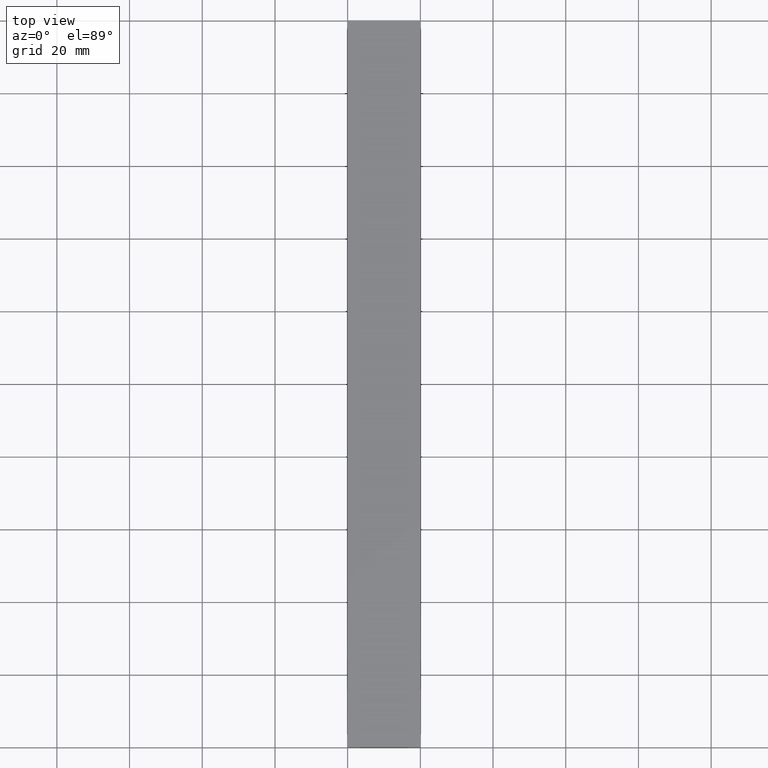
[diagram: clean part render]
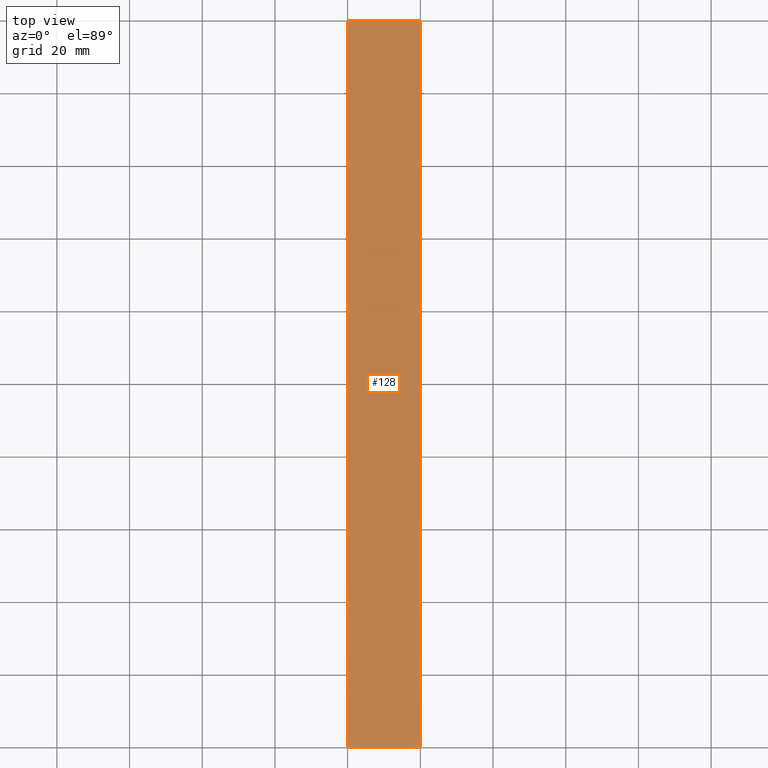
[diagram: same view with one face highlighted and labeled with its STEP entity id]
A machine part, top view. The second image highlights one B-rep face of the part: STEP entity #128.
In plain terms, the highlighted planar face has unit normal (0, 0, 1).
Its self-contained STEP definition (entity closure, byte-faithful):
#6 = LINE ( 'NONE', #89, #43 ) ;
#13 = CARTESIAN_POINT ( 'NONE',  ( 0.0000000000000000000, 0.0000000000000000000, 10.00000000000000000 ) ) ;
#16 = VECTOR ( 'NONE', #234, 1000.000000000000000 ) ;
#24 = CARTESIAN_POINT ( 'NONE',  ( 0.0000000000000000000, 1000.000000000000000, 10.00000000000000000 ) ) ;
#33 = VECTOR ( 'NONE', #41, 1000.000000000000000 ) ;
#37 = ORIENTED_EDGE ( 'NONE', *, *, #184, .T. ) ;
#41 = DIRECTION ( 'NONE',  ( 0.0000000000000000000, -1.000000000000000000, 0.0000000000000000000 ) ) ;
#43 = VECTOR ( 'NONE', #212, 1000.000000000000000 ) ;
#49 = VECTOR ( 'NONE', #92, 1000.000000000000000 ) ;
#50 = DIRECTION ( 'NONE',  ( 0.0000000000000000000, 0.0000000000000000000, 1.000000000000000000 ) ) ;
#52 = ORIENTED_EDGE ( 'NONE', *, *, #121, .F. ) ;
#61 = ORIENTED_EDGE ( 'NONE', *, *, #113, .T. ) ;
#66 = PLANE ( 'NONE',  #157 ) ;
#76 = CARTESIAN_POINT ( 'NONE',  ( 20.00000000000000000, 1000.000000000000000, 10.00000000000000000 ) ) ;
#89 = CARTESIAN_POINT ( 'NONE',  ( 0.0000000000000000000, 200.0000000000000000, 10.00000000000000000 ) ) ;
#90 = CARTESIAN_POINT ( 'NONE',  ( 20.00000000000000000, 0.0000000000000000000, 10.00000000000000000 ) ) ;
#92 = DIRECTION ( 'NONE',  ( -1.000000000000000000, -0.0000000000000000000, -0.0000000000000000000 ) ) ;
#96 = VERTEX_POINT ( 'NONE', #214 ) ;
#98 = CARTESIAN_POINT ( 'NONE',  ( 20.00000000000000000, 200.0000000000000000, 10.00000000000000000 ) ) ;
#107 = ORIENTED_EDGE ( 'NONE', *, *, #170, .F. ) ;
#108 = VERTEX_POINT ( 'NONE', #217 ) ;
#111 = LINE ( 'NONE', #13, #49 ) ;
#113 = EDGE_CURVE ( 'NONE', #108, #96, #183, .T. ) ;
#121 = EDGE_CURVE ( 'NONE', #189, #237, #174, .T. ) ;
#128 = ADVANCED_FACE ( 'NONE', ( #166 ), #66, .T. ) ;
#137 = DIRECTION ( 'NONE',  ( 1.000000000000000000, 0.0000000000000000000, 0.0000000000000000000 ) ) ;
#157 = AXIS2_PLACEMENT_3D ( 'NONE', #158, #50, #137 ) ;
#158 = CARTESIAN_POINT ( 'NONE',  ( 20.00000000000000000, 1000.000000000000000, 10.00000000000000000 ) ) ;
#166 = FACE_OUTER_BOUND ( 'NONE', #182, .T. ) ;
#170 = EDGE_CURVE ( 'NONE', #237, #96, #111, .T. ) ;
#174 = LINE ( 'NONE', #76, #33 ) ;
#182 = EDGE_LOOP ( 'NONE', ( #107, #52, #37, #61 ) ) ;
#183 = LINE ( 'NONE', #24, #16 ) ;
#184 = EDGE_CURVE ( 'NONE', #189, #108, #6, .T. ) ;
#189 = VERTEX_POINT ( 'NONE', #98 ) ;
#212 = DIRECTION ( 'NONE',  ( -1.000000000000000000, -0.0000000000000000000, -0.0000000000000000000 ) ) ;
#214 = CARTESIAN_POINT ( 'NONE',  ( 0.0000000000000000000, 0.0000000000000000000, 10.00000000000000000 ) ) ;
#217 = CARTESIAN_POINT ( 'NONE',  ( 0.0000000000000000000, 200.0000000000000000, 10.00000000000000000 ) ) ;
#234 = DIRECTION ( 'NONE',  ( 0.0000000000000000000, -1.000000000000000000, 0.0000000000000000000 ) ) ;
#237 = VERTEX_POINT ( 'NONE', #90 ) ;